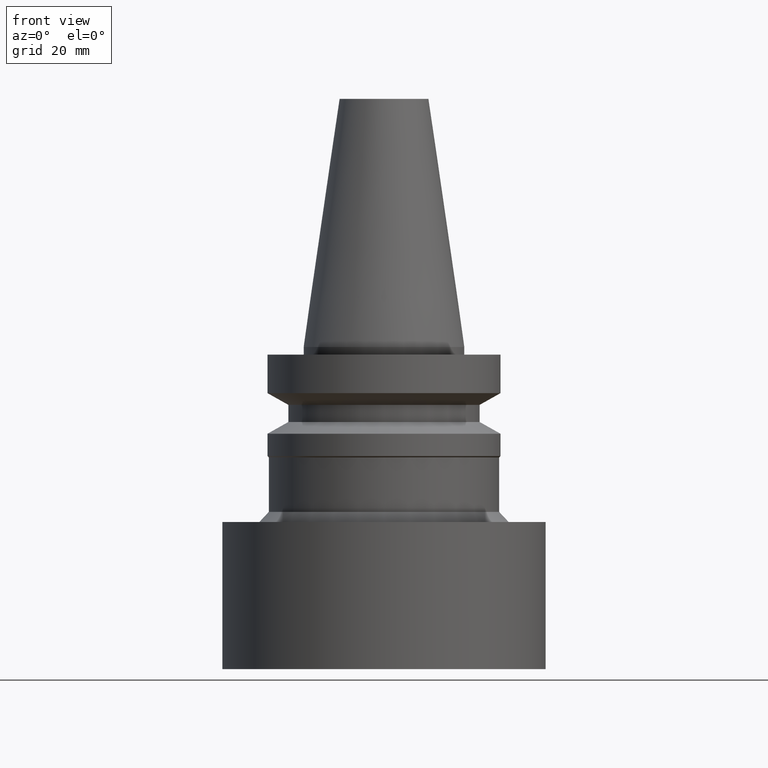
[diagram: clean part render]
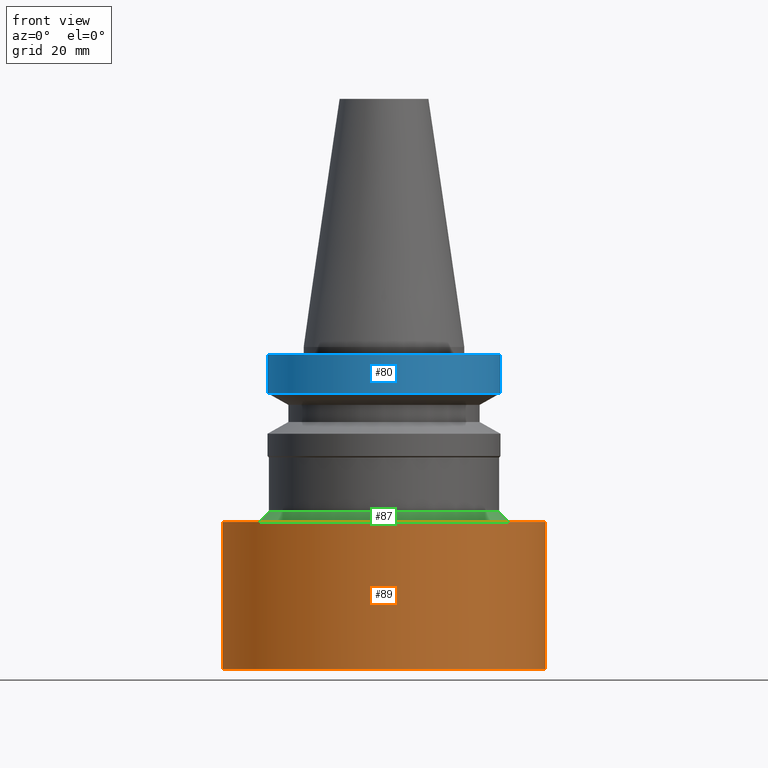
[diagram: same view with three faces highlighted in distinct colors, each labeled with its STEP entity id]
A machine part, front view with three faces highlighted in distinct colors.
Their STEP definitions:

[orange] entity #89 — the highlighted cylindrical surface (bore or boss wall) has radius 32 mm, axis along (-0, -0, 1).
#89=ADVANCED_FACE('',(#131,#132),#133,.T.);
#131=FACE_BOUND('',#174,.T.);
#132=FACE_BOUND('',#175,.T.);
#133=CYLINDRICAL_SURFACE('',#176,32.0);
#174=EDGE_LOOP('',(#245));
#175=EDGE_LOOP('',(#246));
#176=AXIS2_PLACEMENT_3D('',#247,#248,#249);
#245=ORIENTED_EDGE('',*,*,#250,.F.);
#246=ORIENTED_EDGE('',*,*,#263,.T.);
#247=CARTESIAN_POINT('',(3.0310008278897E-015,6.0620016557794E-015,-49.5));
#248=DIRECTION('',(-6.12323399573677E-017,-1.22464679914735E-016,1.0));
#249=DIRECTION('',(-1.23259516440783E-032,1.0,1.22464679914735E-016));
#250=EDGE_CURVE('',#264,#264,#265,.T.);
#263=EDGE_CURVE('',#290,#290,#291,.T.);
#264=VERTEX_POINT('',#292);
#265=CIRCLE('',#293,32.0);
#290=VERTEX_POINT('',#318);
#291=CIRCLE('',#319,32.0);
#292=CARTESIAN_POINT('',(3.91886975727153E-015,32.0,-64.0));
#293=AXIS2_PLACEMENT_3D('',#320,#321,#322);
#318=CARTESIAN_POINT('',(2.14313189850787E-015,32.0,-35.0));
#319=AXIS2_PLACEMENT_3D('',#359,#360,#361);
#320=CARTESIAN_POINT('',(3.91886975727153E-015,7.83773951454306E-015,-64.0));
#321=DIRECTION('',(6.12323399573677E-017,1.22464679914735E-016,-1.0));
#322=DIRECTION('',(-1.23259516440783E-032,1.0,1.22464679914735E-016));
#359=CARTESIAN_POINT('',(2.14313189850787E-015,4.28626379701574E-015,-35.0));
#360=DIRECTION('',(6.12323399573677E-017,1.22464679914735E-016,-1.0));
#361=DIRECTION('',(-1.23259516440783E-032,1.0,1.22464679914735E-016));

[blue] entity #80 — the highlighted cylindrical surface (bore or boss wall) has radius 23 mm, axis along (-0, -0, 1).
#80=ADVANCED_FACE('',(#104,#105),#106,.T.);
#104=FACE_BOUND('',#147,.T.);
#105=FACE_BOUND('',#148,.T.);
#106=CYLINDRICAL_SURFACE('',#149,23.0);
#147=EDGE_LOOP('',(#200));
#148=EDGE_LOOP('',(#201));
#149=AXIS2_PLACEMENT_3D('',#202,#203,#204);
#200=ORIENTED_EDGE('',*,*,#255,.F.);
#201=ORIENTED_EDGE('',*,*,#254,.T.);
#202=CARTESIAN_POINT('',(3.55147560781314E-016,7.10295121562628E-016,-5.79999982082314));
#203=DIRECTION('',(-6.12323399573677E-017,-1.22464679914735E-016,1.0));
#204=DIRECTION('',(-1.23259516440783E-032,1.0,1.22464679914735E-016));
#254=EDGE_CURVE('',#272,#272,#273,.T.);
#255=EDGE_CURVE('',#274,#274,#275,.T.);
#272=VERTEX_POINT('',#300);
#273=CIRCLE('',#301,23.0);
#274=VERTEX_POINT('',#302);
#275=CIRCLE('',#303,23.0);
#300=CARTESIAN_POINT('',(1.22464679914735E-016,23.0,-2.0));
#301=AXIS2_PLACEMENT_3D('',#332,#333,#334);
#302=CARTESIAN_POINT('',(5.87830441647893E-016,23.0,-9.59999964164628));
#303=AXIS2_PLACEMENT_3D('',#335,#336,#337);
#332=CARTESIAN_POINT('',(1.22464679914735E-016,2.44929359829471E-016,-2.0));
#333=DIRECTION('',(6.12323399573677E-017,1.22464679914735E-016,-1.0));
#334=DIRECTION('',(-1.23259516440783E-032,1.0,1.22464679914735E-016));
#335=CARTESIAN_POINT('',(5.87830441647893E-016,1.17566088329579E-015,-9.59999964164628));
#336=DIRECTION('',(6.12323399573677E-017,1.22464679914735E-016,-1.0));
#337=DIRECTION('',(-1.23259516440783E-032,1.0,1.22464679914735E-016));

[green] entity #87 — the highlighted conical surface has half-angle 45 deg.
#87=ADVANCED_FACE('',(#125,#126),#127,.T.);
#125=FACE_BOUND('',#168,.T.);
#126=FACE_BOUND('',#169,.T.);
#127=CONICAL_SURFACE('',#170,23.7,0.785398163397448);
#168=EDGE_LOOP('',(#235));
#169=EDGE_LOOP('',(#236));
#170=AXIS2_PLACEMENT_3D('',#237,#238,#239);
#235=ORIENTED_EDGE('',*,*,#262,.F.);
#236=ORIENTED_EDGE('',*,*,#261,.T.);
#237=CARTESIAN_POINT('',(2.0818995585505E-015,4.163799117101E-015,-34.0));
#238=DIRECTION('',(6.12323399573677E-017,1.22464679914735E-016,-1.0));
#239=DIRECTION('',(-1.23259516440783E-032,1.0,1.22464679914735E-016));
#261=EDGE_CURVE('',#286,#286,#287,.T.);
#262=EDGE_CURVE('',#288,#288,#289,.T.);
#286=VERTEX_POINT('',#314);
#287=CIRCLE('',#315,22.7);
#288=VERTEX_POINT('',#316);
#289=CIRCLE('',#317,24.7);
#314=CARTESIAN_POINT('',(2.02066721859313E-015,22.7,-33.0));
#315=AXIS2_PLACEMENT_3D('',#353,#354,#355);
#316=CARTESIAN_POINT('',(2.14313189850787E-015,24.7,-35.0));
#317=AXIS2_PLACEMENT_3D('',#356,#357,#358);
#353=CARTESIAN_POINT('',(2.02066721859313E-015,4.04133443718627E-015,-33.0));
#354=DIRECTION('',(6.12323399573677E-017,1.22464679914735E-016,-1.0));
#355=DIRECTION('',(-1.23259516440783E-032,1.0,1.22464679914735E-016));
#356=CARTESIAN_POINT('',(2.14313189850787E-015,4.28626379701574E-015,-35.0));
#357=DIRECTION('',(6.12323399573677E-017,1.22464679914735E-016,-1.0));
#358=DIRECTION('',(-1.23259516440783E-032,1.0,1.22464679914735E-016));